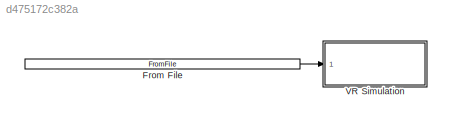
MODEL slx_d475172c382a
KIND model
CONFIG AbsTol = auto
CONFIG EnableMultiTasking = off
CONFIG FixedStep = auto
CONFIG MaxStep = auto
CONFIG MinStep = auto
CONFIG RelTol = 1e-3
CONFIG SampleTimeConstraint = Unconstrained
CONFIG SolverName = VariableStepAuto
CONFIG StartTime = 0.0
CONFIG StopTime = 10
BLOCK [FromFile] From File
  FileName = ./Simulation_signals/HomogeneousSlidingObserver.mat
  SampleTime = 0.001
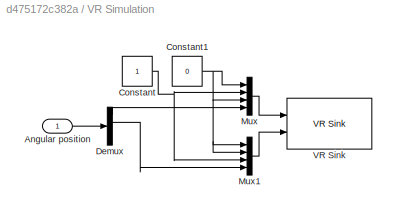
BLOCK [SubSystem] VR Simulation
  Ports = [1]
  RequestExecContextInheritance = off
BLOCK [Inport] VR Simulation/Angular position
BLOCK [Constant] VR Simulation/Constant
BLOCK [Constant] VR Simulation/Constant1
  Value = 0
BLOCK [Demux] VR Simulation/Demux
  Ports = [1, 4]
BLOCK [Mux] VR Simulation/Mux
  DisplayOption = bar
  Ports = [4, 1]
BLOCK [Mux] VR Simulation/Mux1
  DisplayOption = bar
  Ports = [4, 1]
BLOCK [Reference] VR Simulation/VR Sink  REF=vrlib/VR Sink
  InstantiateOnLoad = on
  Ports = [2]
  SourceBlock = vrlib/VR Sink
  SourceProductBaseCode = SL
  SourceType = Virtual Reality Sink
LINE From File:1 -> VR Simulation:1
LINE VR Simulation/Angular position:1 -> VR Simulation/Demux:1
NET VR Simulation/Constant1:1 -> VR Simulation/Mux1:1, VR Simulation/Mux1:2, VR Simulation/Mux:1, VR Simulation/Mux:3
NET VR Simulation/Constant:1 -> VR Simulation/Mux1:3, VR Simulation/Mux:2
LINE VR Simulation/Demux:1 -> VR Simulation/Mux:4
LINE VR Simulation/Demux:2 -> VR Simulation/Mux1:4
LINE VR Simulation/Mux1:1 -> VR Simulation/VR Sink:2
LINE VR Simulation/Mux:1 -> VR Simulation/VR Sink:1
note: NET lines group one-source signal fan-out (src -> all destinations, sorted); 1:1 wires keep LINE
